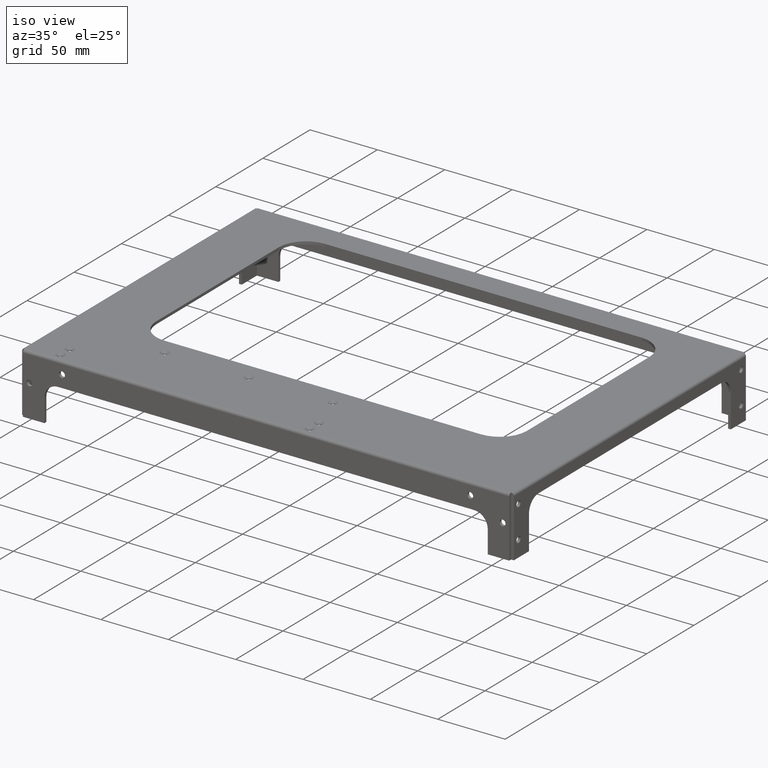
[diagram: clean part render]
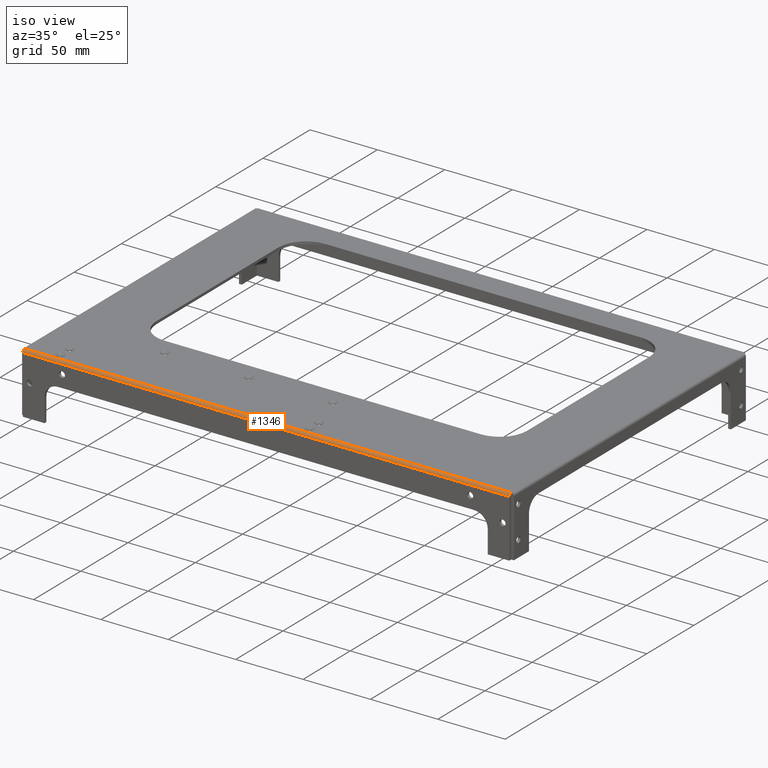
[diagram: same view with one face highlighted and labeled with its STEP entity id]
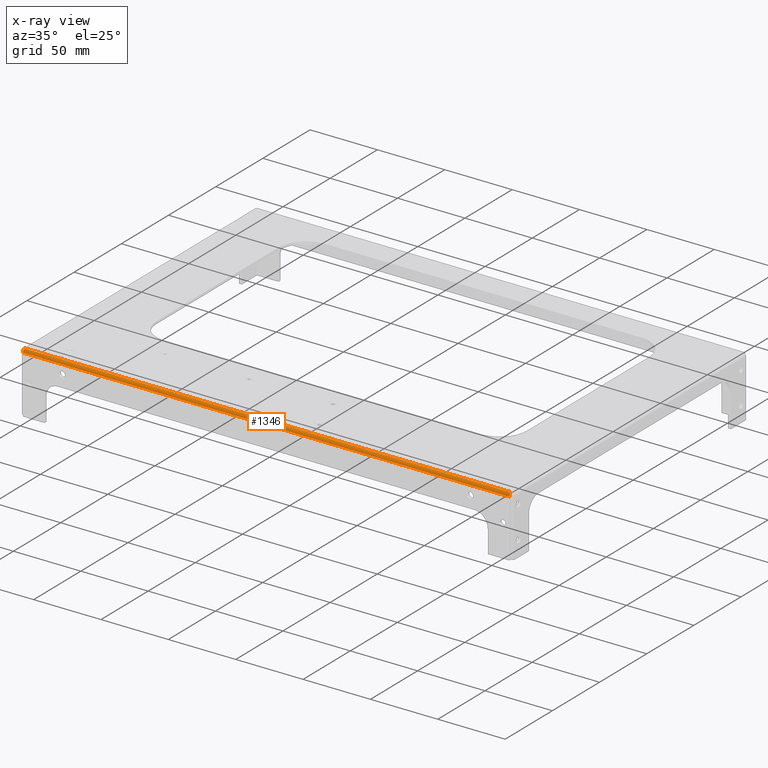
[diagram: x-ray of the same camera — body ghosted, the highlighted face saturated]
A machine part, iso view. The second image highlights one B-rep face of the part: STEP entity #1346.
The next image is the same camera in x-ray: the body ghosted, the highlighted face saturated — about 0% of this face is hidden behind the body in this view.
In plain terms, the highlighted cylindrical surface (edge-blend (fillet) strip) has radius 2 mm, axis along (1, 0, 0).
Its self-contained STEP definition (entity closure, byte-faithful):
#32 = PLANE('',#33);
#33 = AXIS2_PLACEMENT_3D('',#34,#35,#36);
#34 = CARTESIAN_POINT('',(0.,0.,2.032));
#35 = DIRECTION('',(0.,0.,-1.));
#36 = DIRECTION('',(-1.,0.,0.));
#265 = VERTEX_POINT('',#266);
#266 = CARTESIAN_POINT('',(362.968,2.,2.032));
#281 = PLANE('',#282);
#282 = AXIS2_PLACEMENT_3D('',#283,#284,#285);
#283 = CARTESIAN_POINT('',(362.968,0.,0.));
#284 = DIRECTION('',(-1.,0.,0.));
#285 = DIRECTION('',(0.,1.,0.));
#292 = EDGE_CURVE('',#293,#265,#295,.T.);
#293 = VERTEX_POINT('',#294);
#294 = CARTESIAN_POINT('',(2.032,2.,2.032));
#295 = SURFACE_CURVE('',#296,(#300,#307),.PCURVE_S1.);
#296 = LINE('',#297,#298);
#297 = CARTESIAN_POINT('',(2.032,2.,2.032));
#298 = VECTOR('',#299,1.);
#299 = DIRECTION('',(1.,0.,0.));
#300 = PCURVE('',#32,#301);
#301 = DEFINITIONAL_REPRESENTATION('',(#302),#306);
#302 = LINE('',#303,#304);
#303 = CARTESIAN_POINT('',(-2.032,2.));
#304 = VECTOR('',#305,1.);
#305 = DIRECTION('',(-1.,0.));
#306 = ( GEOMETRIC_REPRESENTATION_CONTEXT(2) 
PARAMETRIC_REPRESENTATION_CONTEXT() REPRESENTATION_CONTEXT('2D SPACE',''
  ) );
#307 = PCURVE('',#308,#313);
#308 = CYLINDRICAL_SURFACE('',#309,2.);
#309 = AXIS2_PLACEMENT_3D('',#310,#311,#312);
#310 = CARTESIAN_POINT('',(2.032,2.,3.2E-02));
#311 = DIRECTION('',(1.,0.,0.));
#312 = DIRECTION('',(0.,0.,1.));
#313 = DEFINITIONAL_REPRESENTATION('',(#314),#318);
#314 = LINE('',#315,#316);
#315 = CARTESIAN_POINT('',(0.,0.));
#316 = VECTOR('',#317,1.);
#317 = DIRECTION('',(0.,1.));
#318 = ( GEOMETRIC_REPRESENTATION_CONTEXT(2) 
PARAMETRIC_REPRESENTATION_CONTEXT() REPRESENTATION_CONTEXT('2D SPACE',''
  ) );
#335 = PLANE('',#336);
#336 = AXIS2_PLACEMENT_3D('',#337,#338,#339);
#337 = CARTESIAN_POINT('',(2.032,0.,0.));
#338 = DIRECTION('',(-1.,0.,0.));
#339 = DIRECTION('',(0.,1.,0.));
#1244 = VERTEX_POINT('',#1245);
#1245 = CARTESIAN_POINT('',(362.968,-0.,3.2E-02));
#1259 = PLANE('',#1260);
#1260 = AXIS2_PLACEMENT_3D('',#1261,#1262,#1263);
#1261 = CARTESIAN_POINT('',(0.,0.,0.));
#1262 = DIRECTION('',(0.,1.,0.));
#1263 = DIRECTION('',(1.,0.,0.));
#1271 = EDGE_CURVE('',#265,#1244,#1272,.T.);
#1272 = SURFACE_CURVE('',#1273,(#1278,#1289),.PCURVE_S1.);
#1273 = CIRCLE('',#1274,2.);
#1274 = AXIS2_PLACEMENT_3D('',#1275,#1276,#1277);
#1275 = CARTESIAN_POINT('',(362.968,2.,3.2E-02));
#1276 = DIRECTION('',(1.,0.,-0.));
#1277 = DIRECTION('',(0.,0.,1.));
#1278 = PCURVE('',#281,#1279);
#1279 = DEFINITIONAL_REPRESENTATION('',(#1280),#1288);
#1280 = ( BOUNDED_CURVE() B_SPLINE_CURVE(2,(#1281,#1282,#1283,#1284,
#1285,#1286,#1287),.UNSPECIFIED.,.T.,.F.) B_SPLINE_CURVE_WITH_KNOTS((1,2
    ,2,2,2,1),(-2.094395102393,0.,2.094395102393,4.188790204786,
6.28318530718,8.377580409573),.UNSPECIFIED.) CURVE() 
GEOMETRIC_REPRESENTATION_ITEM() RATIONAL_B_SPLINE_CURVE((1.,0.5,1.,0.5,
1.,0.5,1.)) REPRESENTATION_ITEM('') );
#1281 = CARTESIAN_POINT('',(2.,-2.032));
#1282 = CARTESIAN_POINT('',(-1.464101615138,-2.032));
#1283 = CARTESIAN_POINT('',(0.267949192431,0.968));
#1284 = CARTESIAN_POINT('',(2.,3.968));
#1285 = CARTESIAN_POINT('',(3.732050807569,0.968));
#1286 = CARTESIAN_POINT('',(5.464101615138,-2.032));
#1287 = CARTESIAN_POINT('',(2.,-2.032));
#1288 = ( GEOMETRIC_REPRESENTATION_CONTEXT(2) 
PARAMETRIC_REPRESENTATION_CONTEXT() REPRESENTATION_CONTEXT('2D SPACE',''
  ) );
#1289 = PCURVE('',#308,#1290);
#1290 = DEFINITIONAL_REPRESENTATION('',(#1291),#1295);
#1291 = LINE('',#1292,#1293);
#1292 = CARTESIAN_POINT('',(0.,360.936));
#1293 = VECTOR('',#1294,1.);
#1294 = DIRECTION('',(1.,0.));
#1295 = ( GEOMETRIC_REPRESENTATION_CONTEXT(2) 
PARAMETRIC_REPRESENTATION_CONTEXT() REPRESENTATION_CONTEXT('2D SPACE',''
  ) );
#1346 = ADVANCED_FACE('',(#1347),#308,.T.);
#1347 = FACE_BOUND('',#1348,.T.);
#1348 = EDGE_LOOP('',(#1349,#1377,#1398,#1399));
#1349 = ORIENTED_EDGE('',*,*,#1350,.T.);
#1350 = EDGE_CURVE('',#293,#1351,#1353,.T.);
#1351 = VERTEX_POINT('',#1352);
#1352 = CARTESIAN_POINT('',(2.032,-0.,3.2E-02));
#1353 = SURFACE_CURVE('',#1354,(#1359,#1366),.PCURVE_S1.);
#1354 = CIRCLE('',#1355,2.);
#1355 = AXIS2_PLACEMENT_3D('',#1356,#1357,#1358);
#1356 = CARTESIAN_POINT('',(2.032,2.,3.2E-02));
#1357 = DIRECTION('',(1.,0.,-0.));
#1358 = DIRECTION('',(0.,0.,1.));
#1359 = PCURVE('',#308,#1360);
#1360 = DEFINITIONAL_REPRESENTATION('',(#1361),#1365);
#1361 = LINE('',#1362,#1363);
#1362 = CARTESIAN_POINT('',(0.,0.));
#1363 = VECTOR('',#1364,1.);
#1364 = DIRECTION('',(1.,0.));
#1365 = ( GEOMETRIC_REPRESENTATION_CONTEXT(2) 
PARAMETRIC_REPRESENTATION_CONTEXT() REPRESENTATION_CONTEXT('2D SPACE',''
  ) );
#1366 = PCURVE('',#335,#1367);
#1367 = DEFINITIONAL_REPRESENTATION('',(#1368),#1376);
#1368 = ( BOUNDED_CURVE() B_SPLINE_CURVE(2,(#1369,#1370,#1371,#1372,
#1373,#1374,#1375),.UNSPECIFIED.,.T.,.F.) B_SPLINE_CURVE_WITH_KNOTS((1,2
    ,2,2,2,1),(-2.094395102393,0.,2.094395102393,4.188790204786,
6.28318530718,8.377580409573),.UNSPECIFIED.) CURVE() 
GEOMETRIC_REPRESENTATION_ITEM() RATIONAL_B_SPLINE_CURVE((1.,0.5,1.,0.5,
1.,0.5,1.)) REPRESENTATION_ITEM('') );
#1369 = CARTESIAN_POINT('',(2.,-2.032));
#1370 = CARTESIAN_POINT('',(-1.464101615138,-2.032));
#1371 = CARTESIAN_POINT('',(0.267949192431,0.968));
#1372 = CARTESIAN_POINT('',(2.,3.968));
#1373 = CARTESIAN_POINT('',(3.732050807569,0.968));
#1374 = CARTESIAN_POINT('',(5.464101615138,-2.032));
#1375 = CARTESIAN_POINT('',(2.,-2.032));
#1376 = ( GEOMETRIC_REPRESENTATION_CONTEXT(2) 
PARAMETRIC_REPRESENTATION_CONTEXT() REPRESENTATION_CONTEXT('2D SPACE',''
  ) );
#1377 = ORIENTED_EDGE('',*,*,#1378,.T.);
#1378 = EDGE_CURVE('',#1351,#1244,#1379,.T.);
#1379 = SURFACE_CURVE('',#1380,(#1384,#1391),.PCURVE_S1.);
#1380 = LINE('',#1381,#1382);
#1381 = CARTESIAN_POINT('',(2.032,-4.4E-16,3.2E-02));
#1382 = VECTOR('',#1383,1.);
#1383 = DIRECTION('',(1.,0.,0.));
#1384 = PCURVE('',#308,#1385);
#1385 = DEFINITIONAL_REPRESENTATION('',(#1386),#1390);
#1386 = LINE('',#1387,#1388);
#1387 = CARTESIAN_POINT('',(1.570796326795,0.));
#1388 = VECTOR('',#1389,1.);
#1389 = DIRECTION('',(0.,1.));
#1390 = ( GEOMETRIC_REPRESENTATION_CONTEXT(2) 
PARAMETRIC_REPRESENTATION_CONTEXT() REPRESENTATION_CONTEXT('2D SPACE',''
  ) );
#1391 = PCURVE('',#1259,#1392);
#1392 = DEFINITIONAL_REPRESENTATION('',(#1393),#1397);
#1393 = LINE('',#1394,#1395);
#1394 = CARTESIAN_POINT('',(2.032,-3.2E-02));
#1395 = VECTOR('',#1396,1.);
#1396 = DIRECTION('',(1.,0.));
#1397 = ( GEOMETRIC_REPRESENTATION_CONTEXT(2) 
PARAMETRIC_REPRESENTATION_CONTEXT() REPRESENTATION_CONTEXT('2D SPACE',''
  ) );
#1398 = ORIENTED_EDGE('',*,*,#1271,.F.);
#1399 = ORIENTED_EDGE('',*,*,#292,.F.);